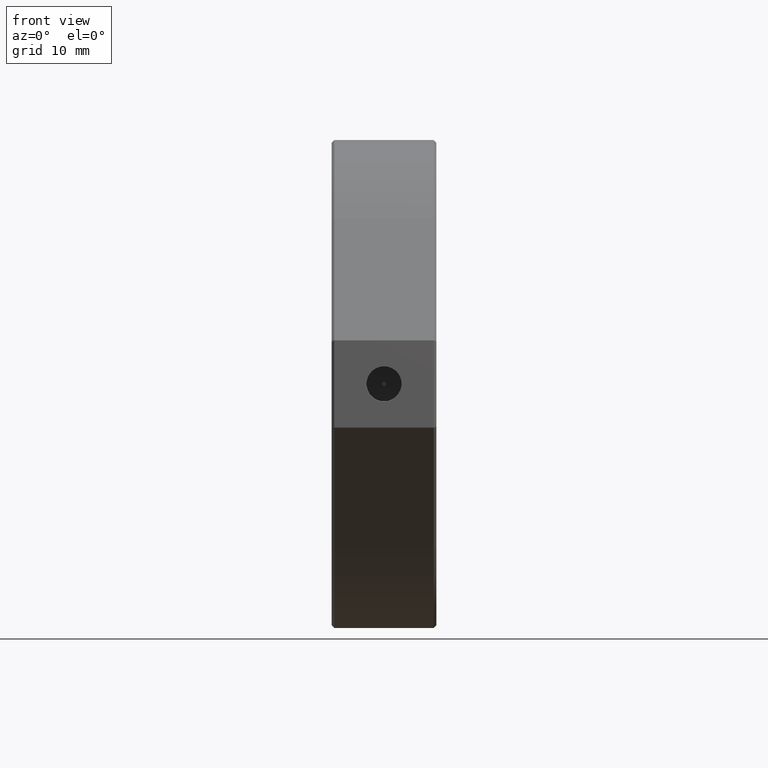
[diagram: clean part render]
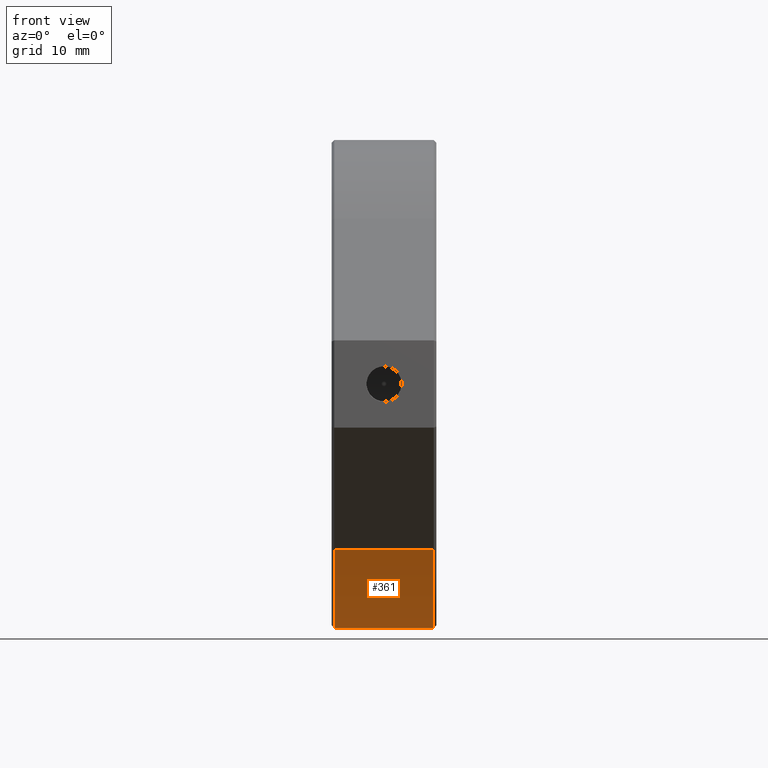
[diagram: same view with one face highlighted and labeled with its STEP entity id]
A machine part, front view. The second image highlights one B-rep face of the part: STEP entity #361.
In plain terms, the highlighted cylindrical surface (partial cylindrical patch) has radius 27.95 mm, axis along (-1, -0, -0).
Its self-contained STEP definition (entity closure, byte-faithful):
#47 = VERTEX_POINT ( 'NONE', #565 ) ;
#48 = CARTESIAN_POINT ( 'NONE',  ( 5.700000000000012612, 0.0000000000000000000, 0.0000000000000000000 ) ) ;
#120 = DIRECTION ( 'NONE',  ( 0.0000000000000000000, 0.0000000000000000000, 1.000000000000000000 ) ) ;
#153 = AXIS2_PLACEMENT_3D ( 'NONE', #1266, #313, #719 ) ;
#163 = AXIS2_PLACEMENT_3D ( 'NONE', #255, #1051, #120 ) ;
#196 = DIRECTION ( 'NONE',  ( -1.000000000000000000, -0.0000000000000000000, -0.0000000000000000000 ) ) ;
#236 = CARTESIAN_POINT ( 'NONE',  ( -5.699999999999991296, -20.55390413166742292, -18.94042040046168651 ) ) ;
#255 = CARTESIAN_POINT ( 'NONE',  ( 6.000000000000000000, 0.0000000000000000000, 0.0000000000000000000 ) ) ;
#265 = LINE ( 'NONE', #371, #1059 ) ;
#282 = VERTEX_POINT ( 'NONE', #236 ) ;
#307 = EDGE_CURVE ( 'NONE', #707, #851, #265, .T. ) ;
#313 = DIRECTION ( 'NONE',  ( 1.000000000000000000, -0.0000000000000000000, -0.0000000000000000000 ) ) ;
#361 = ADVANCED_FACE ( 'NONE', ( #1470 ), #940, .T. ) ;
#371 = CARTESIAN_POINT ( 'NONE',  ( 6.000000000000000000, 3.422887803616852597E-15, -27.95000000000000284 ) ) ;
#514 = EDGE_CURVE ( 'NONE', #707, #47, #805, .T. ) ;
#560 = CARTESIAN_POINT ( 'NONE',  ( 6.000000000000000000, -20.55390413166742292, -18.94042040046168651 ) ) ;
#565 = CARTESIAN_POINT ( 'NONE',  ( 5.700000000000012612, -20.55390413166742292, -18.94042040046168651 ) ) ;
#685 = ORIENTED_EDGE ( 'NONE', *, *, #307, .F. ) ;
#707 = VERTEX_POINT ( 'NONE', #813 ) ;
#719 = DIRECTION ( 'NONE',  ( 0.0000000000000000000, 0.0000000000000000000, -1.000000000000000000 ) ) ;
#786 = DIRECTION ( 'NONE',  ( -1.000000000000000000, -0.0000000000000000000, -0.0000000000000000000 ) ) ;
#805 = CIRCLE ( 'NONE', #1623, 27.95000000000000284 ) ;
#813 = CARTESIAN_POINT ( 'NONE',  ( 5.700000000000012612, 3.422887803616852597E-15, -27.95000000000000284 ) ) ;
#851 = VERTEX_POINT ( 'NONE', #1639 ) ;
#864 = VECTOR ( 'NONE', #196, 1000.000000000000000 ) ;
#911 = EDGE_CURVE ( 'NONE', #47, #282, #1358, .T. ) ;
#925 = ORIENTED_EDGE ( 'NONE', *, *, #1451, .T. ) ;
#940 = CYLINDRICAL_SURFACE ( 'NONE', #163, 27.95000000000000284 ) ;
#1025 = DIRECTION ( 'NONE',  ( 0.0000000000000000000, 0.0000000000000000000, -1.000000000000000000 ) ) ;
#1051 = DIRECTION ( 'NONE',  ( -1.000000000000000000, -0.0000000000000000000, -0.0000000000000000000 ) ) ;
#1059 = VECTOR ( 'NONE', #786, 1000.000000000000000 ) ;
#1126 = DIRECTION ( 'NONE',  ( -1.000000000000000000, 0.0000000000000000000, 0.0000000000000000000 ) ) ;
#1143 = CIRCLE ( 'NONE', #153, 27.95000000000000284 ) ;
#1266 = CARTESIAN_POINT ( 'NONE',  ( -5.699999999999991296, 0.0000000000000000000, 0.0000000000000000000 ) ) ;
#1337 = ORIENTED_EDGE ( 'NONE', *, *, #911, .T. ) ;
#1358 = LINE ( 'NONE', #560, #864 ) ;
#1451 = EDGE_CURVE ( 'NONE', #282, #851, #1143, .T. ) ;
#1470 = FACE_OUTER_BOUND ( 'NONE', #1531, .T. ) ;
#1531 = EDGE_LOOP ( 'NONE', ( #685, #1706, #1337, #925 ) ) ;
#1623 = AXIS2_PLACEMENT_3D ( 'NONE', #48, #1126, #1025 ) ;
#1639 = CARTESIAN_POINT ( 'NONE',  ( -5.699999999999991296, 0.0000000000000000000, -27.95000000000000284 ) ) ;
#1706 = ORIENTED_EDGE ( 'NONE', *, *, #514, .T. ) ;